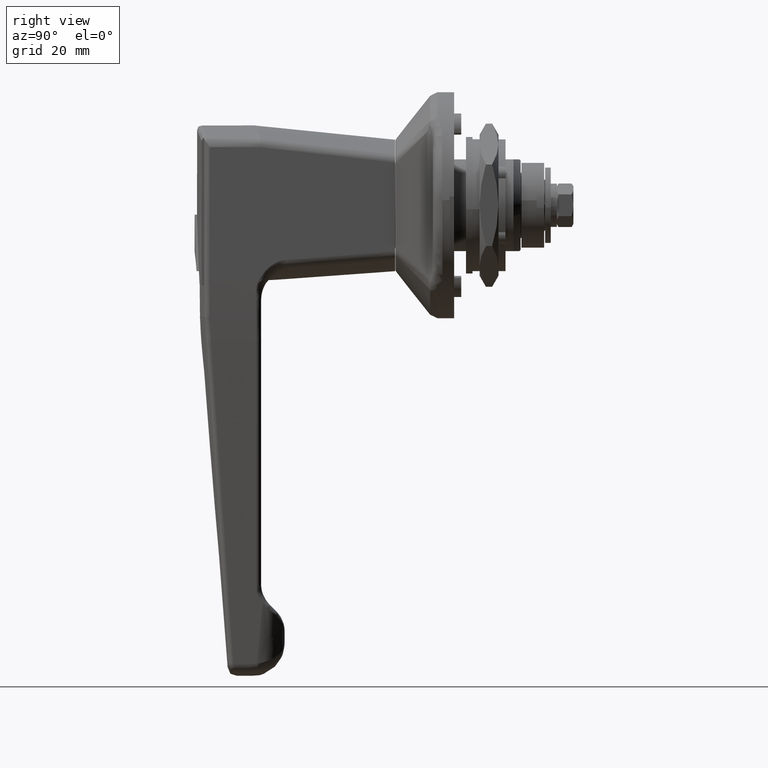
[diagram: clean part render]
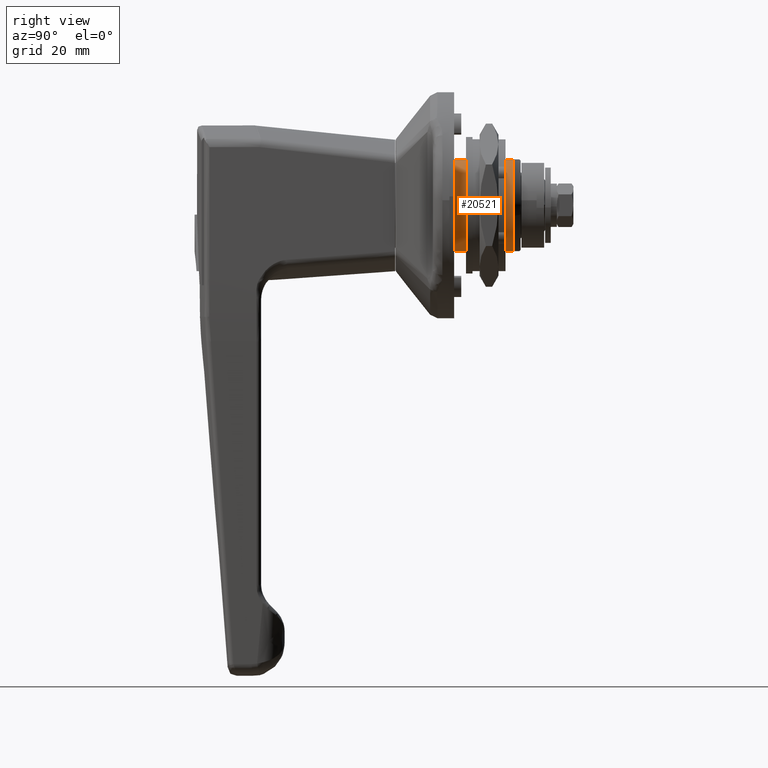
[diagram: same view with one face highlighted and labeled with its STEP entity id]
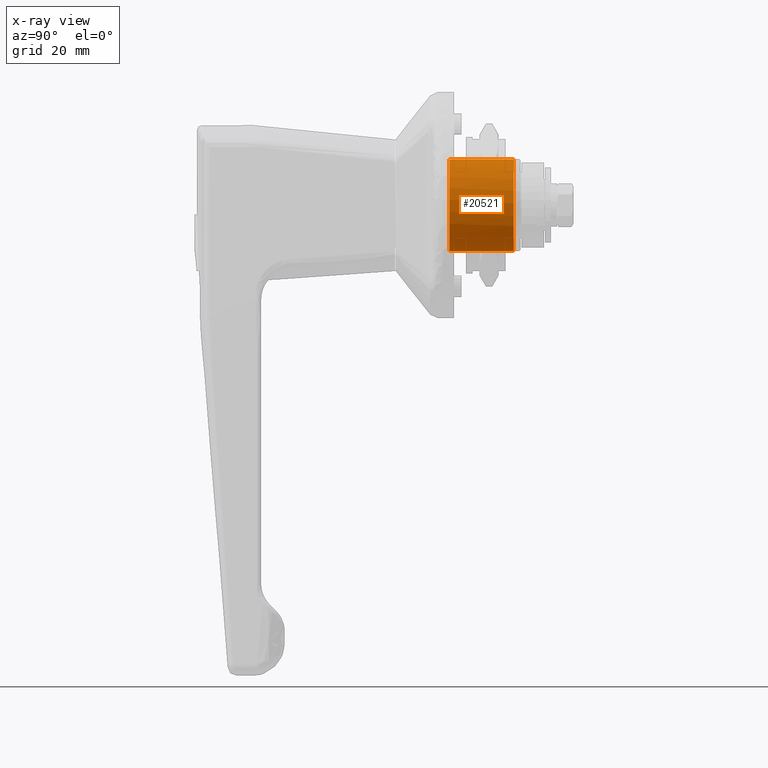
[diagram: x-ray of the same camera — body ghosted, the highlighted face saturated]
A machine part, right view. The second image highlights one B-rep face of the part: STEP entity #20521.
The next image is the same camera in x-ray: the body ghosted, the highlighted face saturated — about 0% of this face is hidden behind the body in this view.
In plain terms, the highlighted face is a freeform B-spline surface patch.
Its self-contained STEP definition (entity closure, byte-faithful):
#16104=CARTESIAN_POINT('',(12.599999999999760,-10.762814312287610,-2.271965686189478));
#16105=VERTEX_POINT('',#16104);
#16111=CARTESIAN_POINT('',(12.600000000000000,-5.092887196865510,-9.750000000000171));
#16112=VERTEX_POINT('',#16111);
#16113=CARTESIAN_POINT('',(12.600000000000000,-5.092887196865512,-9.750000000000172));
#16114=CARTESIAN_POINT('',(12.600000000000003,-9.691285729881541,-7.348038460012267));
#16115=CARTESIAN_POINT('',(12.599999999999753,-10.762814312287603,-2.271965686189477));
#16123=(BOUNDED_CURVE()B_SPLINE_CURVE(2,(#16113,#16114,#16115),.UNSPECIFIED.,.F.,.U.)B_SPLINE_CURVE_WITH_KNOTS((3,3),(0.0,0.402118987422249),.UNSPECIFIED.)CURVE()GEOMETRIC_REPRESENTATION_ITEM()RATIONAL_B_SPLINE_CURVE((1.0,0.883606446087682,0.954429124342157))REPRESENTATION_ITEM(''));
#16124=EDGE_CURVE('',#16112,#16105,#16123,.T.);
#16234=CARTESIAN_POINT('',(12.600000000000000,-5.092887196865510,9.750000000000171));
#16235=VERTEX_POINT('',#16234);
#16268=CARTESIAN_POINT('',(12.599999999999762,-10.762814312287611,-2.271965686189478));
#16269=CARTESIAN_POINT('',(12.599999999999998,-11.000000000000002,-1.148363542945292));
#16270=CARTESIAN_POINT('',(12.600000000000000,-11.0,0.0));
#16271=CARTESIAN_POINT('',(12.600000000000001,-11.0,6.664434957382381));
#16272=CARTESIAN_POINT('',(12.600000000000000,-5.092887196865513,9.750000000000171));
#16280=(BOUNDED_CURVE()B_SPLINE_CURVE(2,(#16268,#16269,#16270,#16271,#16272),.UNSPECIFIED.,.F.,.U.)B_SPLINE_CURVE_WITH_KNOTS((3,2,3),(0.402118987422248,0.500000000000000,1.0),.UNSPECIFIED.)CURVE()GEOMETRIC_REPRESENTATION_ITEM()RATIONAL_B_SPLINE_CURVE((0.954429124342157,0.971668289061671,1.0,0.855274735149353,1.0))REPRESENTATION_ITEM(''));
#16281=EDGE_CURVE('',#16105,#16235,#16280,.T.);
#16309=CARTESIAN_POINT('',(-1.0,-5.092887196865510,9.750000000000171));
#16310=VERTEX_POINT('',#16309);
#16316=CARTESIAN_POINT('',(12.600000000000000,-5.092887196865510,9.750000000000171));
#16317=CARTESIAN_POINT('',(-1.0,-5.092887196865510,9.750000000000171));
#16318=QUASI_UNIFORM_CURVE('',1,(#16316,#16317),.UNSPECIFIED.,.F.,.U.);
#16319=EDGE_CURVE('',#16235,#16310,#16318,.T.);
#16337=CARTESIAN_POINT('',(-1.0,-5.092887196865510,-9.750000000000171));
#16338=VERTEX_POINT('',#16337);
#16350=CARTESIAN_POINT('',(-1.0,-5.092887196865510,-9.750000000000171));
#16351=CARTESIAN_POINT('',(12.600000000000000,-5.092887196865510,-9.750000000000171));
#16352=QUASI_UNIFORM_CURVE('',1,(#16350,#16351),.UNSPECIFIED.,.F.,.U.);
#16353=EDGE_CURVE('',#16338,#16112,#16352,.T.);
#20469=CARTESIAN_POINT('',(-0.999999999999980,-5.092887196865511,-9.750000000000172));
#20470=CARTESIAN_POINT('',(-0.999999999999980,-11.0,-6.664434957382384));
#20471=CARTESIAN_POINT('',(-0.999999999999980,-11.0,0.0));
#20472=CARTESIAN_POINT('',(-0.999999999999980,-11.0,6.664434957382381));
#20473=CARTESIAN_POINT('',(-0.999999999999980,-5.092887196865513,9.750000000000171));
#20481=(BOUNDED_CURVE()B_SPLINE_CURVE(2,(#20469,#20470,#20471,#20472,#20473),.UNSPECIFIED.,.F.,.U.)B_SPLINE_CURVE_WITH_KNOTS((3,2,3),(0.0,0.500000000000000,1.0),.UNSPECIFIED.)CURVE()GEOMETRIC_REPRESENTATION_ITEM()RATIONAL_B_SPLINE_CURVE((1.0,0.855274735149353,1.0,0.855274735149353,1.0))REPRESENTATION_ITEM(''));
#20482=EDGE_CURVE('',#16338,#16310,#20481,.T.);
#20500=CARTESIAN_POINT('',(12.940000000000000,-4.808239035968231,9.893474484375609));
#20501=CARTESIAN_POINT('',(-1.348500000000000,-4.808239035968231,9.893474484375609));
#20502=CARTESIAN_POINT('',(12.940000000000001,-26.517487437321808,-0.657243139626725));
#20503=CARTESIAN_POINT('',(-1.348500000000000,-26.517487437321808,-0.657243139626725));
#20504=CARTESIAN_POINT('',(12.940000000000000,-4.312211341956249,-10.119527328008150));
#20505=CARTESIAN_POINT('',(-1.348500000000000,-4.312211341956249,-10.119527328008150));
#20513=(BOUNDED_SURFACE()B_SPLINE_SURFACE(1,2,((#20500,#20502,#20504),(#20501,#20503,#20505)),.UNSPECIFIED.,.F.,.F.,.U.)B_SPLINE_SURFACE_WITH_KNOTS((2,2),(3,3),(0.0,14.288500000000001),(0.0,28.301751016631481),.UNSPECIFIED.)GEOMETRIC_REPRESENTATION_ITEM()RATIONAL_B_SPLINE_SURFACE(((1.0,0.414693242656239,1.0),(1.0,0.414693242656239,1.0)))REPRESENTATION_ITEM('')SURFACE());
#20514=ORIENTED_EDGE('',*,*,#16124,.T.);
#20515=ORIENTED_EDGE('',*,*,#16281,.T.);
#20516=ORIENTED_EDGE('',*,*,#16319,.T.);
#20517=ORIENTED_EDGE('',*,*,#20482,.F.);
#20518=ORIENTED_EDGE('',*,*,#16353,.T.);
#20519=EDGE_LOOP('',(#20514,#20515,#20516,#20517,#20518));
#20520=FACE_OUTER_BOUND('',#20519,.T.);
#20521=ADVANCED_FACE('',(#20520),#20513,.T.);